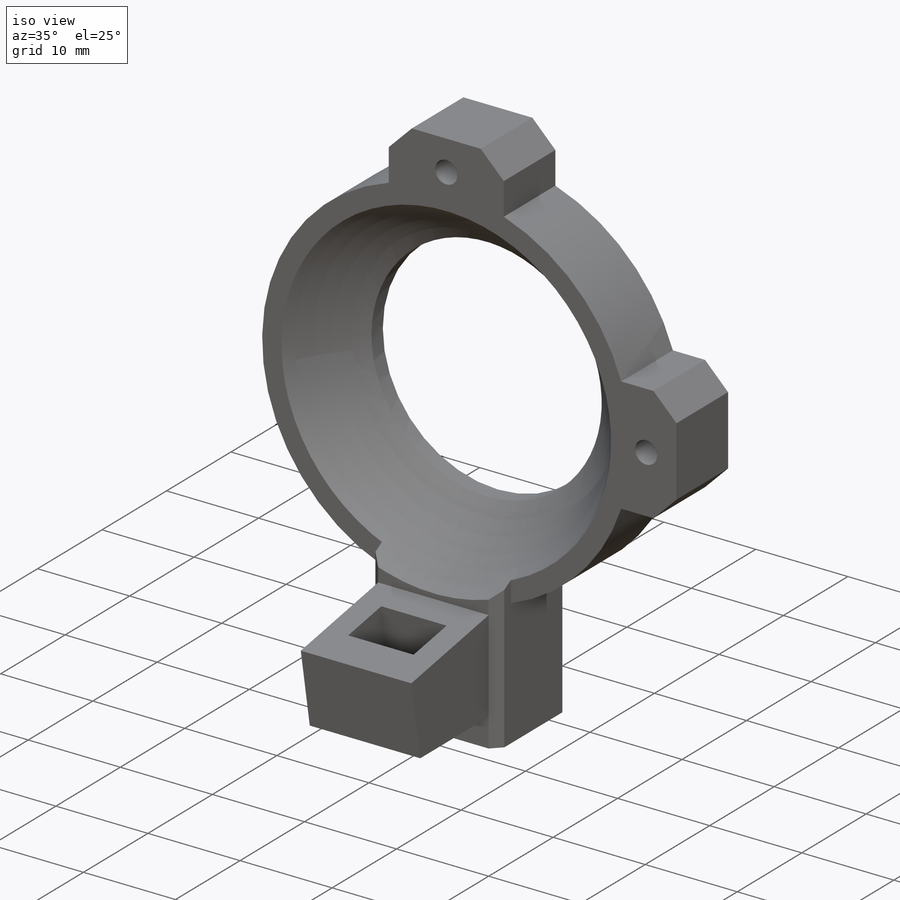
[diagram: iso view]
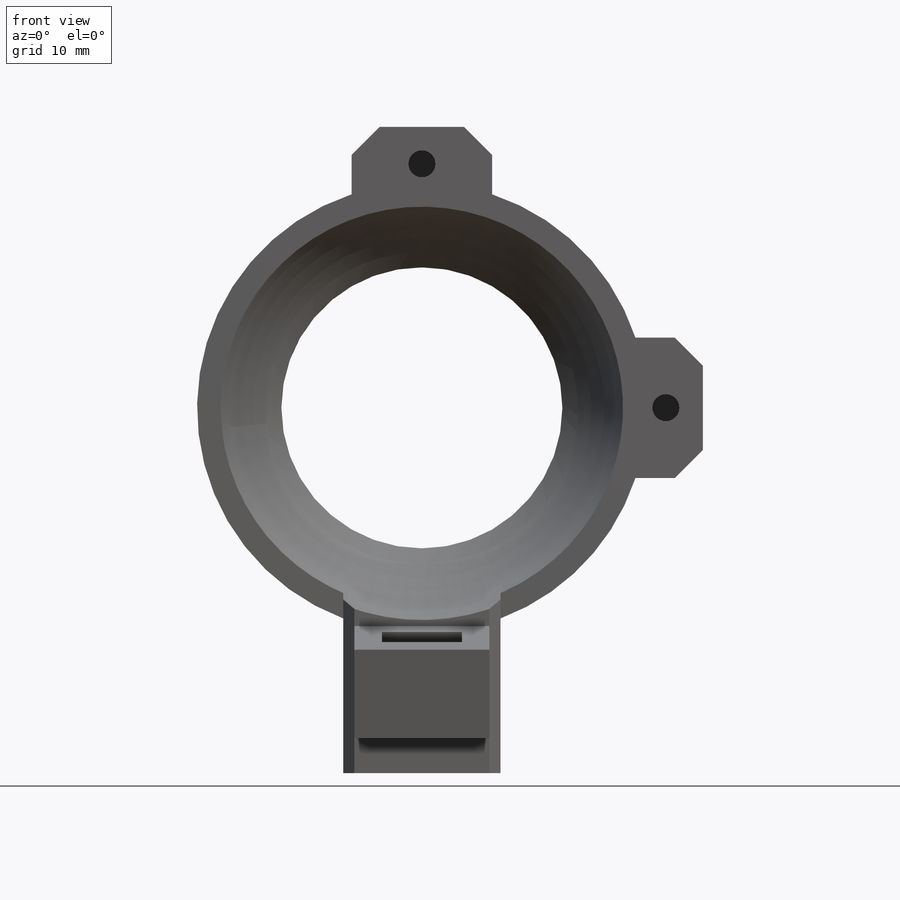
[diagram: front view]
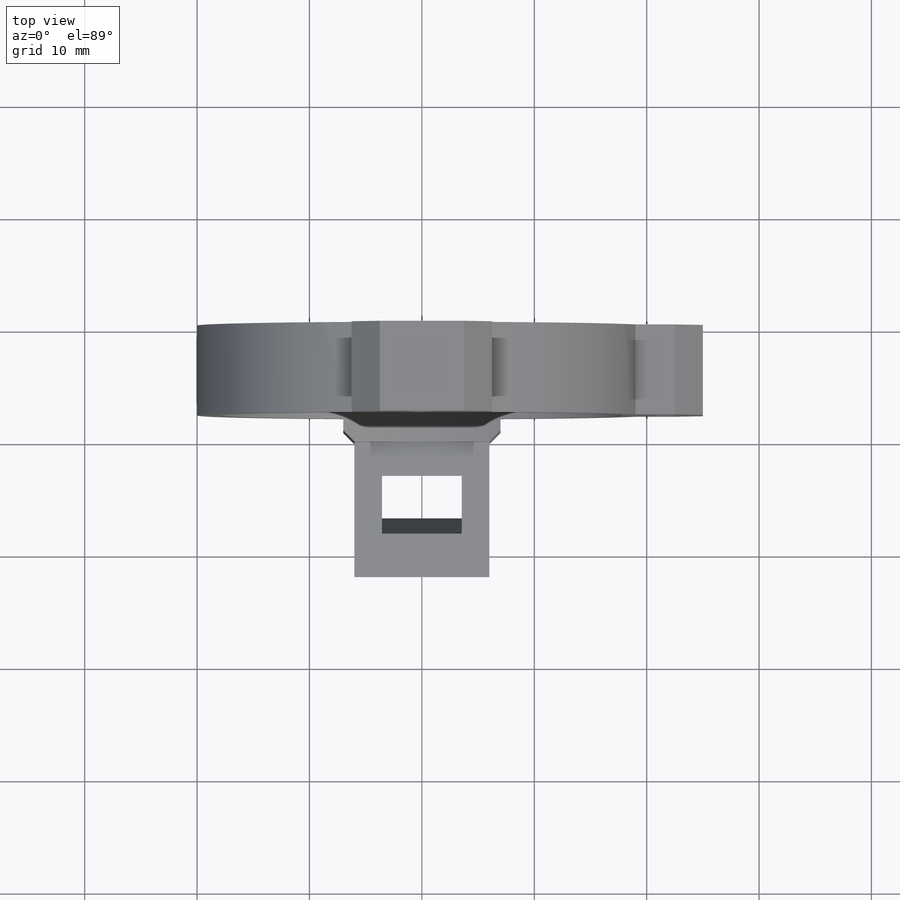
[diagram: top view]
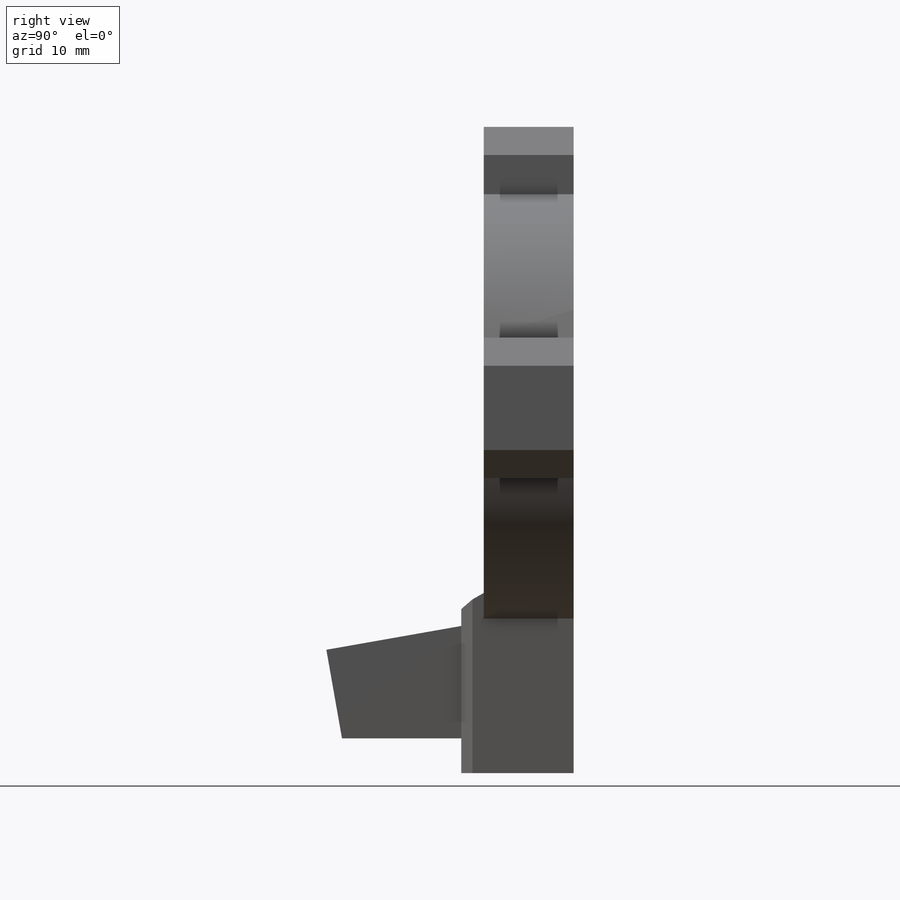
[diagram: right view]
SOLIDWORKS PART (.sldprt)
format: sldprt  version: not decoded by parser v0  size: 323,584 bytes
history: native  units: mm
features: sketch x10, extrude x5, cut_extrude x3, chamfer x2, material x1, cut_revolve x1, pattern_circular x1 (+11 scaffold rows collapsed)
feature tree (34):
  scaffold x11  (default folders/planes/origin — collapsed)
  material  "ABS"
  sketch  "Sketch1"  dims[D1=40.0mm D2=25.0mm D3=1.0mm D4=1.0mm D5=2.0mm]
  extrude  "Boss-Extrude1"  Depth=8mm
  sketch  "Sketch18"  dims[c1.D1=14.0mm c1.D2=10.0mm c1.D3=1.0mm c2.D2=10.0mm c2.D3=1.0mm]
  extrude  "Boss-Extrude7"  [1 undecoded]
  sketch  "Sketch3"  dims[c1.D1=20.0mm c1.D2=14.0mm c1.D3=3.5mm c2.D1=32.5mm]
  extrude  "Boss-Extrude2"  Depth=10mm
  sketch  "Sketch2"  dims[D1=41.0mm D2=18.0mm]
  cut_revolve  "Cut-Revolve2"  Angle=360deg
  sketch  "Sketch4"  dims[c1.D1=2.75mm c1.D2=~4.330084mm c2.D2=~0.255119deg c3.D2=9.0mm c3.D1=6.3mm]
  cut_extrude  "Cut-Extrude1"  Depth=12mm
  sketch  "Sketch11"  dims[c1.D1=41.0mm c1.D2=10.0mm c1.D3=12.0mm c1.D4=6.0mm c2.D3=6.0mm c2.D4=12.0mm c2.D5=10.0mm c3.D4=12.0mm c3.D2=10.0mm c3.D3=12.0mm c4.D3=80.0deg]
  extrude  "Boss-Extrude4"  Depth=12mm
  sketch  "Sketch12"  dims[D2=41.0mm D1=10.0mm]
  sketch  "Sketch13"  dims[D1=7.1mm D2=5.2mm D3=~18.884653mm]
  cut_extrude  "Cut-Extrude5"  [1 undecoded]
  sketch  "Sketch22"  dims[D1=4.0mm]
  extrude  "Boss-Extrude10"  [1 undecoded]
  sketch  "Sketch24"  dims[D2=2.4mm D1=20.5mm]
  cut_extrude  "Cut-Extrude8"  Depth=1.5mm
  pattern_circular  "CirPattern1"  Count=2 Angle=90deg
  chamfer  "Chamfer1"  Distance=2.5mm Angle=45deg
  chamfer  "Chamfer2"  Distance=1mm Angle=45deg
decode coverage: 19 of 22 modeling features carry decoded parameters
note: ~ marks probable driven/reference dimensions
note: 3 parameter values undecoded
summary: no parameter record found for 3 features
note: suppression state not decoded; provenance and decode notes live in map.json
